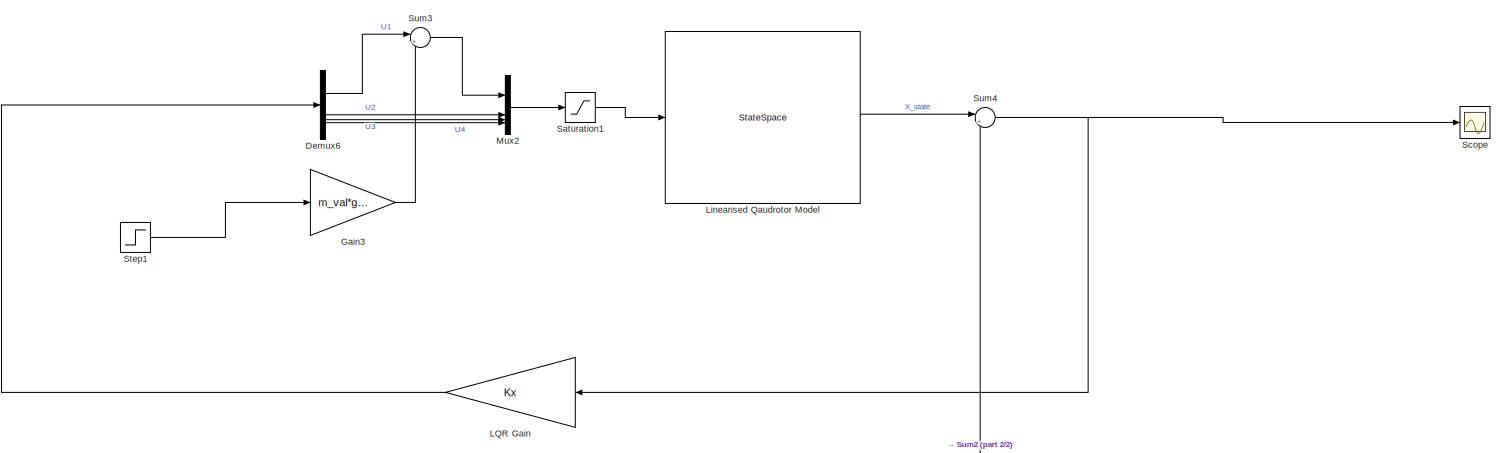
[diagram: root canvas - part 1/2, full width, top band]
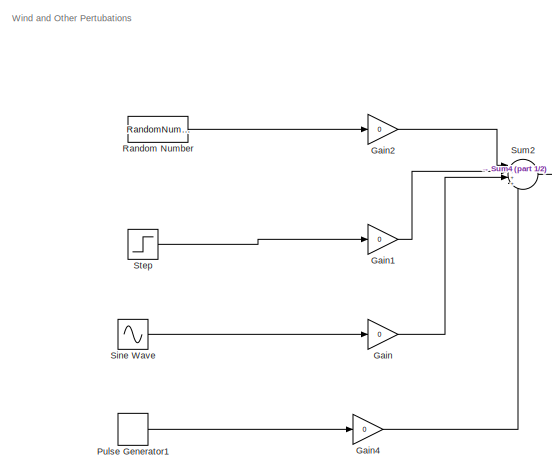
[diagram: root canvas - part 2/2, bottom center region]
MODEL slx_030b9e235c9a
KIND model
CONFIG AbsTol = auto
CONFIG EnableMultiTasking = off
CONFIG FixedStep = auto
CONFIG MaxStep = auto
CONFIG MinStep = auto
CONFIG RelTol = 1e-3
CONFIG SampleTimeConstraint = Unconstrained
CONFIG SolverName = VariableStepAuto
CONFIG StartTime = 0.0
CONFIG StopTime = 10.0
BLOCK [Demux] Demux6
BLOCK [Gain] Gain
  Gain = 0
BLOCK [Gain] Gain1
  Gain = 0
BLOCK [Gain] Gain2
  Gain = 0
BLOCK [Gain] Gain3
  Gain = m_val*g_val
BLOCK [Gain] Gain4
  Gain = 0
BLOCK [Gain] LQR Gain
  Gain = Kx
  Multiplication = Matrix(K*u)
BLOCK [StateSpace] Linearised Qaudrotor Model
  A = A_aug
  B = B_aug
  C = C_aug
  D = D_aug
  InitialCondition = 0
BLOCK [Mux] Mux2
  DisplayOption = bar
BLOCK [DiscretePulseGenerator] Pulse Generator1
  Period = 10
  PhaseDelay = 5
  PulseType = Time based
  PulseWidth = 20
BLOCK [RandomNumber] Random Number
  SampleTime = 0.1
  Variance = 0.5
BLOCK [Saturate] Saturation1
  LowerLimit = [-3; -0.15; -0.1; -0.5]
  UpperLimit = [30; 0.15; 0.1; 0.5]
BLOCK [Scope] Scope
  Floating = off
  NumInputPorts = 1
  ScopeSpecificationString = Simulink.scopes.TimeScopeBlockCfg('CurrentConfiguration', extmgr.ConfigurationSet(extmgr.Configuration('Core','General UI',true),extmgr.Configuration('Core','Source UI',true),extmgr.Configuration('Sources','WiredSimulink',true),extmgr.Configuration('Visuals','Time Domain',true),extmgr.Configuration('Tools','Plot Navigation',true),extmgr.Configuration('Tools','Measurements',true)),'Version','2024a'...<+1ch>
BLOCK [Sin] Sine Wave
  Frequency = 0.5
  SampleTime = 0
BLOCK [Step] Step
  After = disturbance
  Before = zeros(12,1)
  SampleTime = 0
BLOCK [Step] Step1
  After = 1.25
  Before = 1
  SampleTime = 0
  Time = 10
BLOCK [Sum] Sum2
  Inputs = |++++
BLOCK [Sum] Sum3
  Inputs = |++
BLOCK [Sum] Sum4
  Inputs = |++
ANNOTATION (root): Wind and Other Pertubations
LINE Demux6:1 -> Sum3:1
LINE Demux6:2 -> Mux2:2
LINE Demux6:3 -> Mux2:3
LINE Demux6:4 -> Mux2:4
LINE Gain1:1 -> Sum2:2
LINE Gain2:1 -> Sum2:1
LINE Gain3:1 -> Sum3:2
LINE Gain4:1 -> Sum2:4
LINE Gain:1 -> Sum2:3
LINE LQR Gain:1 -> Demux6:1
LINE Linearised Qaudrotor Model:1 -> Sum4:1
LINE Mux2:1 -> Saturation1:1
LINE Pulse Generator1:1 -> Gain4:1
LINE Random Number:1 -> Gain2:1
LINE Saturation1:1 -> Linearised Qaudrotor Model:1
LINE Sine Wave:1 -> Gain:1
LINE Step1:1 -> Gain3:1
LINE Step:1 -> Gain1:1
LINE Sum2:1 -> Sum4:2
LINE Sum3:1 -> Mux2:1
NET Sum4:1 -> LQR Gain:1, Scope:1
note: NET lines group one-source signal fan-out (src -> all destinations, sorted); 1:1 wires keep LINE
